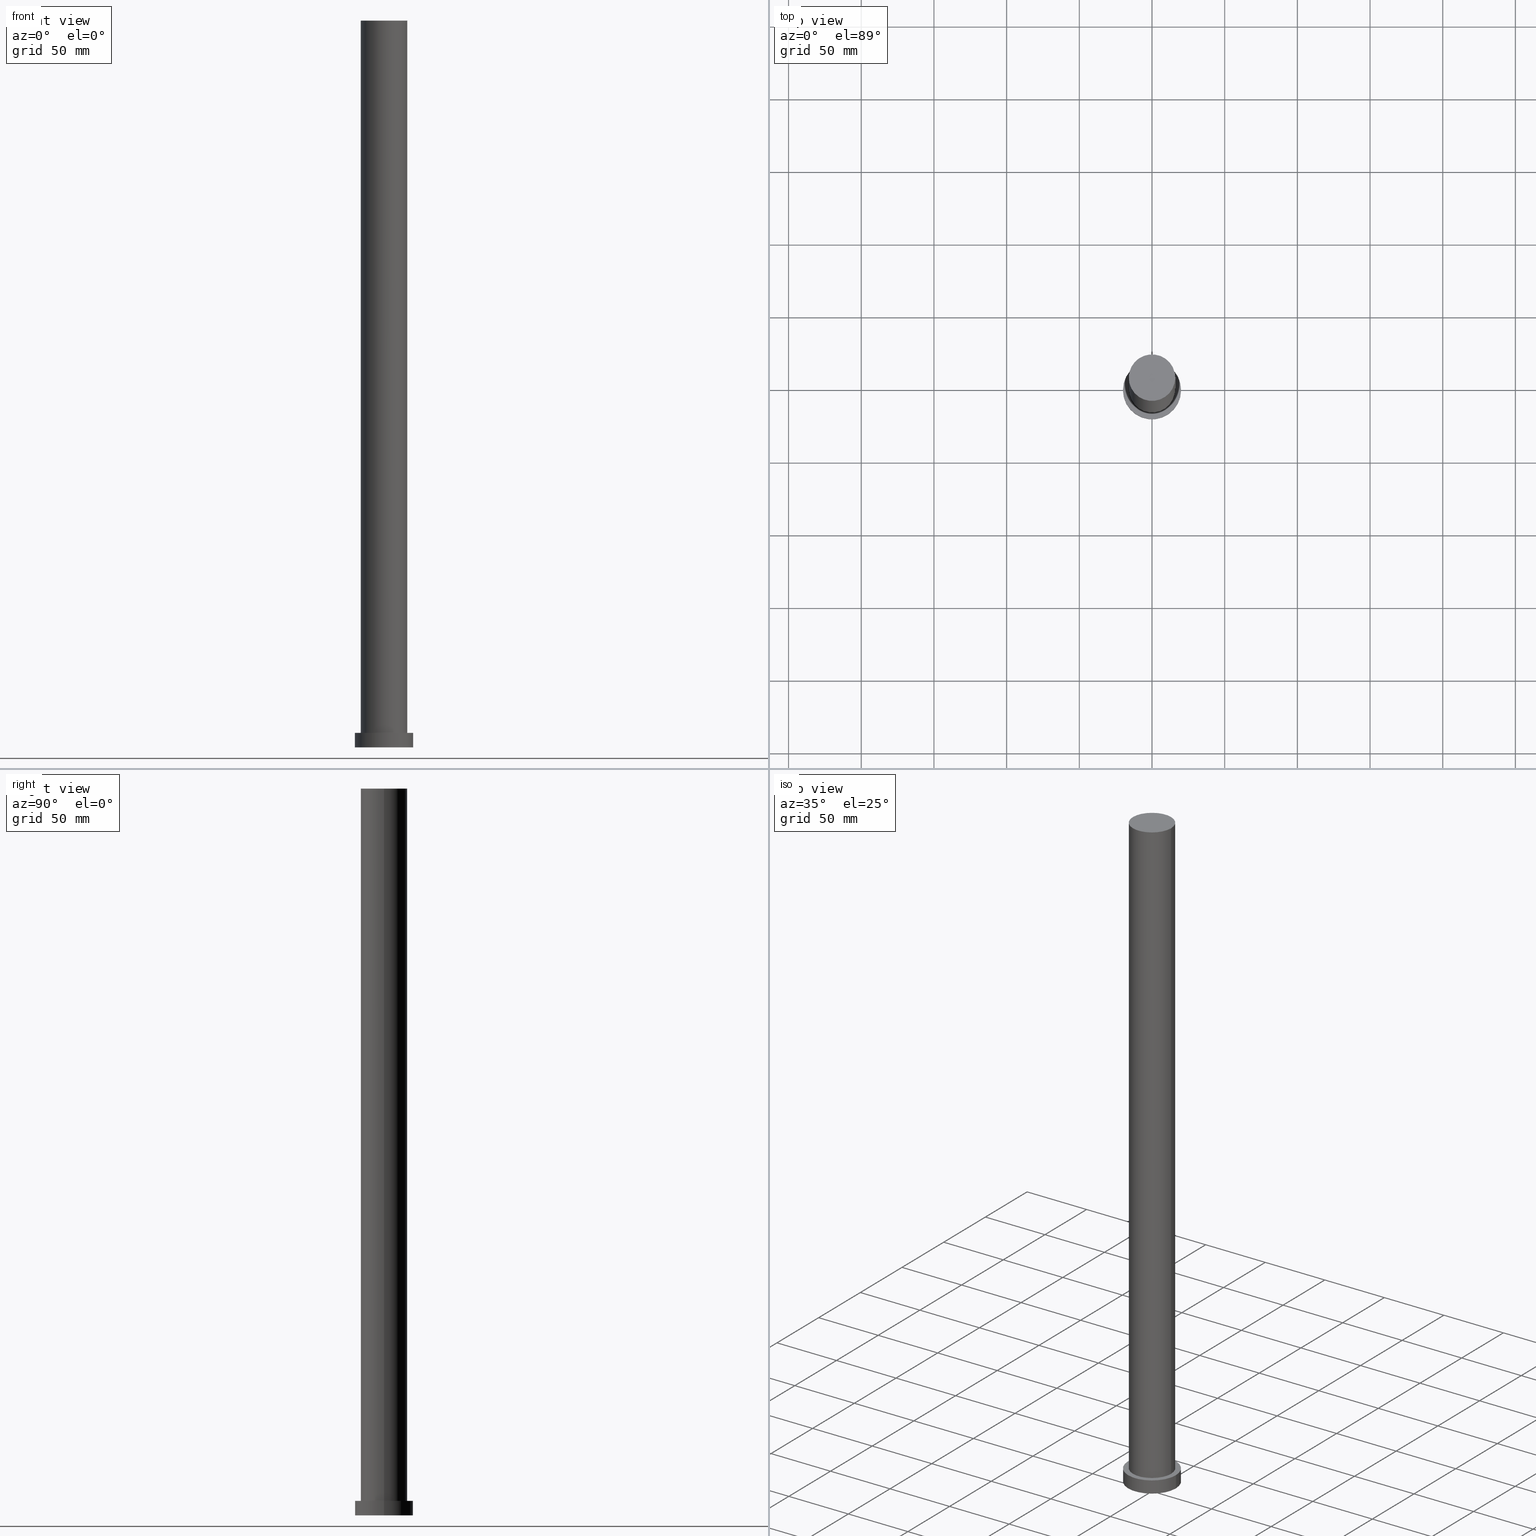
[diagram: canonical four-view strip — front | top / right | iso, engineering-drawing reading convention]
A machine part, canonical four-view strip (front | top / right | iso — engineering-drawing reading convention). The complete STEP part file that produces these views, byte-faithful:
ISO-10303-21;
HEADER;
FILE_DESCRIPTION (( 'STEP AP203' ),
    '1' );
FILE_NAME ('41db.STEP',
    '2023-02-12T10:25:48',
    ( '' ),
    ( '' ),
    'SwSTEP 2.0',
    'SolidWorks 2019',
    '' );
FILE_SCHEMA (( 'CONFIG_CONTROL_DESIGN' ));
ENDSEC;

DATA;
#1 = CYLINDRICAL_SURFACE ( 'NONE', #191, 16.00000000000000000 ) ;
#2 = DIRECTION ( 'NONE',  ( -0.000000000000000000, -0.000000000000000000, -1.000000000000000000 ) ) ;
#3 = CARTESIAN_POINT ( 'NONE',  ( 0.000000000000000000, 0.000000000000000000, 10.00000000000000000 ) ) ;
#4 = AXIS2_PLACEMENT_3D ( 'NONE', #36, #154, #33 ) ;
#5 = SECURITY_CLASSIFICATION ( '', '', #66 ) ;
#6 = PERSON_AND_ORGANIZATION ( #24, #159 ) ;
#7 = FACE_OUTER_BOUND ( 'NONE', #51, .T. ) ;
#8 = DIRECTION ( 'NONE',  ( 1.000000000000000000, 0.000000000000000000, 0.000000000000000000 ) ) ;
#9 = DIRECTION ( 'NONE',  ( 0.000000000000000000, 0.000000000000000000, 1.000000000000000000 ) ) ;
#10 = COORDINATED_UNIVERSAL_TIME_OFFSET ( 1, 0, .AHEAD. ) ;
#11 = APPROVAL ( #107, 'NEUR�EN�' ) ;
#12 = DATE_TIME_ROLE ( 'classification_date' ) ;
#13 = CALENDAR_DATE ( 2023, 12, 2 ) ;
#14 = CIRCLE ( 'NONE', #230, 16.00000000000000000 ) ;
#15 = EDGE_LOOP ( 'NONE', ( #132, #246, #179, #131 ) ) ;
#16 = CIRCLE ( 'NONE', #248, 16.00000000000000000 ) ;
#17 = VERTEX_POINT ( 'NONE', #186 ) ;
#18 = CC_DESIGN_DATE_AND_TIME_ASSIGNMENT ( #40, #120, ( #170 ) ) ;
#19 = DIRECTION ( 'NONE',  ( -0.000000000000000000, -0.000000000000000000, -1.000000000000000000 ) ) ;
#20 = DATE_AND_TIME ( #163, #77 ) ;
#21 = CARTESIAN_POINT ( 'NONE',  ( 16.00000000000000000, 1.959434878635765131E-15, 500.0000000000000000 ) ) ;
#22 = CC_DESIGN_APPROVAL ( #83, ( #5 ) ) ;
#23 = DIRECTION ( 'NONE',  ( 1.000000000000000000, 0.000000000000000000, -0.000000000000000000 ) ) ;
#24 = PERSON ( 'NEUR�EN�', 'NEUR�EN�', 'NEUR�EN�', ('NEUR�EN�'), ('NEUR�EN�'), ('NEUR�EN�') ) ;
#25 = CARTESIAN_POINT ( 'NONE',  ( -16.00000000000000000, 0.000000000000000000, 500.0000000000000000 ) ) ;
#26 = DIRECTION ( 'NONE',  ( -0.000000000000000000, -0.000000000000000000, -1.000000000000000000 ) ) ;
#27 = PRODUCT_DEFINITION_FORMATION_WITH_SPECIFIED_SOURCE ( 'LIBOVOLN�', '', #37, .NOT_KNOWN. ) ;
#28 = CARTESIAN_POINT ( 'NONE',  ( 0.000000000000000000, 0.000000000000000000, 0.000000000000000000 ) ) ;
#29 = FACE_OUTER_BOUND ( 'NONE', #153, .T. ) ;
#30 = APPROVAL_STATUS ( 'not_yet_approved' ) ;
#31 = EDGE_CURVE ( 'NONE', #47, #238, #150, .T. ) ;
#32 = EDGE_LOOP ( 'NONE', ( #234, #177 ) ) ;
#33 = DIRECTION ( 'NONE',  ( 1.000000000000000000, 0.000000000000000000, 0.000000000000000000 ) ) ;
#34 = CARTESIAN_POINT ( 'NONE',  ( 0.000000000000000000, 0.000000000000000000, 10.00000000000000000 ) ) ;
#35 = ORIENTED_EDGE ( 'NONE', *, *, #217, .T. ) ;
#36 = CARTESIAN_POINT ( 'NONE',  ( 0.000000000000000000, 0.000000000000000000, 0.000000000000000000 ) ) ;
#37 = PRODUCT ( '41db', '41db', '', ( #42 ) ) ;
#38 = DIRECTION ( 'NONE',  ( 1.000000000000000000, 0.000000000000000000, 0.000000000000000000 ) ) ;
#39 = ORIENTED_EDGE ( 'NONE', *, *, #155, .T. ) ;
#40 = DATE_AND_TIME ( #226, #71 ) ;
#41 = DIRECTION ( 'NONE',  ( 1.000000000000000000, 0.000000000000000000, 0.000000000000000000 ) ) ;
#42 = MECHANICAL_CONTEXT ( 'NONE', #247, 'mechanical' ) ;
#43 = CC_DESIGN_PERSON_AND_ORGANIZATION_ASSIGNMENT ( #172, #109, ( #27 ) ) ;
#44 = LOCAL_TIME ( 11, 25, 48.00000000000000000, #64 ) ;
#45 = AXIS2_PLACEMENT_3D ( 'NONE', #105, #187, #8 ) ;
#46 = PERSON_AND_ORGANIZATION ( #24, #159 ) ;
#47 = VERTEX_POINT ( 'NONE', #142 ) ;
#48 = CYLINDRICAL_SURFACE ( 'NONE', #149, 16.00000000000000000 ) ;
#49 = EDGE_CURVE ( 'NONE', #175, #156, #202, .T. ) ;
#50 = DIRECTION ( 'NONE',  ( 1.000000000000000000, 0.000000000000000000, 0.000000000000000000 ) ) ;
#51 = EDGE_LOOP ( 'NONE', ( #195, #93 ) ) ;
#52 = ORIENTED_EDGE ( 'NONE', *, *, #31, .F. ) ;
#53 = LOCAL_TIME ( 11, 25, 48.00000000000000000, #10 ) ;
#54 = FACE_OUTER_BOUND ( 'NONE', #229, .T. ) ;
#55 = VECTOR ( 'NONE', #184, 1000.000000000000000 ) ;
#56 = DIRECTION ( 'NONE',  ( 1.000000000000000000, 0.000000000000000000, -0.000000000000000000 ) ) ;
#57 = ADVANCED_FACE ( 'NONE', ( #29 ), #62, .T. ) ;
#58 = APPROVAL_DATE_TIME ( #87, #11 ) ;
#59 = DIRECTION ( 'NONE',  ( 1.000000000000000000, 0.000000000000000000, -0.000000000000000000 ) ) ;
#60 = APPLICATION_CONTEXT ( 'configuration controlled 3d designs of mechanical parts and assemblies' ) ;
#61 = CARTESIAN_POINT ( 'NONE',  ( 16.00000000000000000, 1.959434878635765131E-15, 10.00000000000000000 ) ) ;
#62 = CYLINDRICAL_SURFACE ( 'NONE', #209, 20.00000000000000000 ) ;
#63 = EDGE_CURVE ( 'NONE', #17, #156, #94, .T. ) ;
#64 = COORDINATED_UNIVERSAL_TIME_OFFSET ( 1, 0, .AHEAD. ) ;
#65 = APPROVAL ( #30, 'NEUR�EN�' ) ;
#66 = SECURITY_CLASSIFICATION_LEVEL ( 'unclassified' ) ;
#67 = AXIS2_PLACEMENT_3D ( 'NONE', #228, #118, #38 ) ;
#68 = VERTEX_POINT ( 'NONE', #61 ) ;
#69 = DIRECTION ( 'NONE',  ( -0.000000000000000000, -0.000000000000000000, -1.000000000000000000 ) ) ;
#70 = CARTESIAN_POINT ( 'NONE',  ( 0.000000000000000000, 0.000000000000000000, 500.0000000000000000 ) ) ;
#71 = LOCAL_TIME ( 11, 25, 48.00000000000000000, #165 ) ;
#72 = CARTESIAN_POINT ( 'NONE',  ( 0.000000000000000000, 0.000000000000000000, 500.0000000000000000 ) ) ;
#73 = FACE_BOUND ( 'NONE', #236, .T. ) ;
#74 = EDGE_LOOP ( 'NONE', ( #84, #35, #135, #114 ) ) ;
#75 = DIRECTION ( 'NONE',  ( 0.000000000000000000, 0.000000000000000000, 1.000000000000000000 ) ) ;
#76 = FACE_OUTER_BOUND ( 'NONE', #32, .T. ) ;
#77 = LOCAL_TIME ( 11, 25, 48.00000000000000000, #253 ) ;
#78 = CARTESIAN_POINT ( 'NONE',  ( 0.000000000000000000, 0.000000000000000000, 0.000000000000000000 ) ) ;
#79 = CIRCLE ( 'NONE', #171, 20.00000000000000000 ) ;
#80 = PLANE ( 'NONE',  #216 ) ;
#81 = PERSON_AND_ORGANIZATION ( #24, #159 ) ;
#82 = DIRECTION ( 'NONE',  ( -0.000000000000000000, -0.000000000000000000, -1.000000000000000000 ) ) ;
#83 = APPROVAL ( #126, 'NEUR�EN�' ) ;
#84 = ORIENTED_EDGE ( 'NONE', *, *, #213, .F. ) ;
#85 = APPROVAL_PERSON_ORGANIZATION ( #190, #11, #200 ) ;
#86 = CALENDAR_DATE ( 2023, 12, 2 ) ;
#87 = DATE_AND_TIME ( #86, #53 ) ;
#88 = PERSON_AND_ORGANIZATION ( #24, #159 ) ;
#89 = DATE_AND_TIME ( #13, #204 ) ;
#90 = AXIS2_PLACEMENT_3D ( 'NONE', #188, #9, #219 ) ;
#91 = APPROVAL_DATE_TIME ( #89, #65 ) ;
#92 = ADVANCED_FACE ( 'NONE', ( #76 ), #227, .T. ) ;
#93 = ORIENTED_EDGE ( 'NONE', *, *, #63, .F. ) ;
#94 = CIRCLE ( 'NONE', #103, 20.00000000000000000 ) ;
#95 = LINE ( 'NONE', #183, #240 ) ;
#96 = ORIENTED_EDGE ( 'NONE', *, *, #164, .T. ) ;
#97 = ORIENTED_EDGE ( 'NONE', *, *, #155, .F. ) ;
#98 =( LENGTH_UNIT ( ) NAMED_UNIT ( * ) SI_UNIT ( .MILLI., .METRE. ) );
#99 =( NAMED_UNIT ( * ) SI_UNIT ( $, .STERADIAN. ) SOLID_ANGLE_UNIT ( ) );
#100 = LINE ( 'NONE', #25, #145 ) ;
#101 = CARTESIAN_POINT ( 'NONE',  ( -20.00000000000000000, 0.000000000000000000, 10.00000000000000000 ) ) ;
#102 = CARTESIAN_POINT ( 'NONE',  ( 20.00000000000000000, 2.449293598294706513E-15, 10.00000000000000000 ) ) ;
#103 = AXIS2_PLACEMENT_3D ( 'NONE', #241, #119, #41 ) ;
#104 = CIRCLE ( 'NONE', #4, 20.00000000000000000 ) ;
#105 = CARTESIAN_POINT ( 'NONE',  ( 0.000000000000000000, 0.000000000000000000, 10.00000000000000000 ) ) ;
#106 = CARTESIAN_POINT ( 'NONE',  ( -20.00000000000000000, 0.000000000000000000, 0.000000000000000000 ) ) ;
#107 = APPROVAL_STATUS ( 'not_yet_approved' ) ;
#108 = CLOSED_SHELL ( 'NONE', ( #210, #57, #239, #201, #129, #254, #92 ) ) ;
#109 = PERSON_AND_ORGANIZATION_ROLE ( 'design_supplier' ) ;
#110 = EDGE_CURVE ( 'NONE', #127, #17, #225, .T. ) ;
#111 = COORDINATED_UNIVERSAL_TIME_OFFSET ( 1, 0, .AHEAD. ) ;
#112 = CC_DESIGN_PERSON_AND_ORGANIZATION_ASSIGNMENT ( #81, #144, ( #37 ) ) ;
#113 = PERSON_AND_ORGANIZATION ( #24, #159 ) ;
#114 = ORIENTED_EDGE ( 'NONE', *, *, #192, .F. ) ;
#115 = ORIENTED_EDGE ( 'NONE', *, *, #141, .F. ) ;
#116 = CC_DESIGN_PERSON_AND_ORGANIZATION_ASSIGNMENT ( #6, #138, ( #170 ) ) ;
#117 = ORIENTED_EDGE ( 'NONE', *, *, #192, .T. ) ;
#118 = DIRECTION ( 'NONE',  ( 0.000000000000000000, 0.000000000000000000, 1.000000000000000000 ) ) ;
#119 = DIRECTION ( 'NONE',  ( 0.000000000000000000, 0.000000000000000000, 1.000000000000000000 ) ) ;
#120 = DATE_TIME_ROLE ( 'creation_date' ) ;
#121 = DIRECTION ( 'NONE',  ( 0.000000000000000000, 0.000000000000000000, 1.000000000000000000 ) ) ;
#122 = DIRECTION ( 'NONE',  ( 0.000000000000000000, 0.000000000000000000, 1.000000000000000000 ) ) ;
#123 = DIRECTION ( 'NONE',  ( 1.000000000000000000, 0.000000000000000000, 0.000000000000000000 ) ) ;
#124 = VECTOR ( 'NONE', #26, 1000.000000000000000 ) ;
#125 = CC_DESIGN_APPROVAL ( #11, ( #170 ) ) ;
#126 = APPROVAL_STATUS ( 'not_yet_approved' ) ;
#127 = VERTEX_POINT ( 'NONE', #166 ) ;
#128 = AXIS2_PLACEMENT_3D ( 'NONE', #178, #75, #23 ) ;
#129 = ADVANCED_FACE ( 'NONE', ( #7 ), #80, .F. ) ;
#130 = EDGE_LOOP ( 'NONE', ( #96, #39 ) ) ;
#131 = ORIENTED_EDGE ( 'NONE', *, *, #168, .T. ) ;
#132 = ORIENTED_EDGE ( 'NONE', *, *, #110, .F. ) ;
#133 = EDGE_CURVE ( 'NONE', #68, #167, #16, .T. ) ;
#134 = FACE_OUTER_BOUND ( 'NONE', #130, .T. ) ;
#135 = ORIENTED_EDGE ( 'NONE', *, *, #133, .T. ) ;
#136 =( NAMED_UNIT ( * ) PLANE_ANGLE_UNIT ( ) SI_UNIT ( $, .RADIAN. ) );
#137 = DIRECTION ( 'NONE',  ( -1.000000000000000000, 0.000000000000000000, 0.000000000000000000 ) ) ;
#138 = PERSON_AND_ORGANIZATION_ROLE ( 'creator' ) ;
#139 = CARTESIAN_POINT ( 'NONE',  ( 0.000000000000000000, 0.000000000000000000, 10.00000000000000000 ) ) ;
#140 = DIRECTION ( 'NONE',  ( 0.000000000000000000, 0.000000000000000000, 1.000000000000000000 ) ) ;
#141 = EDGE_CURVE ( 'NONE', #167, #68, #161, .T. ) ;
#142 = CARTESIAN_POINT ( 'NONE',  ( -16.00000000000000000, 0.000000000000000000, 500.0000000000000000 ) ) ;
#143 = ORIENTED_EDGE ( 'NONE', *, *, #63, .T. ) ;
#144 = PERSON_AND_ORGANIZATION_ROLE ( 'design_owner' ) ;
#145 = VECTOR ( 'NONE', #2, 1000.000000000000000 ) ;
#146 = CC_DESIGN_SECURITY_CLASSIFICATION ( #5, ( #27 ) ) ;
#147 = PERSON_AND_ORGANIZATION ( #24, #159 ) ;
#148 = PERSON_AND_ORGANIZATION_ROLE ( 'creator' ) ;
#149 = AXIS2_PLACEMENT_3D ( 'NONE', #70, #69, #222 ) ;
#150 = CIRCLE ( 'NONE', #67, 16.00000000000000000 ) ;
#151 = ORIENTED_EDGE ( 'NONE', *, *, #217, .F. ) ;
#152 =( GEOMETRIC_REPRESENTATION_CONTEXT ( 3 ) GLOBAL_UNCERTAINTY_ASSIGNED_CONTEXT ( ( #193 ) ) GLOBAL_UNIT_ASSIGNED_CONTEXT ( ( #98, #136, #99 ) ) REPRESENTATION_CONTEXT ( 'NONE', 'WORKASPACE' ) );
#153 = EDGE_LOOP ( 'NONE', ( #97, #218, #143, #251 ) ) ;
#154 = DIRECTION ( 'NONE',  ( 0.000000000000000000, 0.000000000000000000, 1.000000000000000000 ) ) ;
#155 = EDGE_CURVE ( 'NONE', #127, #175, #79, .T. ) ;
#156 = VERTEX_POINT ( 'NONE', #106 ) ;
#157 = FACE_OUTER_BOUND ( 'NONE', #74, .T. ) ;
#158 = DIRECTION ( 'NONE',  ( -1.000000000000000000, 0.000000000000000000, 0.000000000000000000 ) ) ;
#159 = ORGANIZATION ( 'NEUR�EN�', 'NEUR�EN�', '' ) ;
#160 = DIRECTION ( 'NONE',  ( 0.000000000000000000, 0.000000000000000000, 1.000000000000000000 ) ) ;
#161 = CIRCLE ( 'NONE', #45, 16.00000000000000000 ) ;
#162 = DIRECTION ( 'NONE',  ( 0.000000000000000000, 0.000000000000000000, 1.000000000000000000 ) ) ;
#163 = CALENDAR_DATE ( 2023, 12, 2 ) ;
#164 = EDGE_CURVE ( 'NONE', #175, #127, #206, .T. ) ;
#165 = COORDINATED_UNIVERSAL_TIME_OFFSET ( 1, 0, .AHEAD. ) ;
#166 = CARTESIAN_POINT ( 'NONE',  ( 20.00000000000000000, 2.449293598294706513E-15, 10.00000000000000000 ) ) ;
#167 = VERTEX_POINT ( 'NONE', #198 ) ;
#168 = EDGE_CURVE ( 'NONE', #156, #17, #104, .T. ) ;
#169 = APPLICATION_PROTOCOL_DEFINITION ( 'international standard', 'config_control_design', 1994, #60 ) ;
#170 = PRODUCT_DEFINITION ( 'NEZN�M�', '', #27, #212 ) ;
#171 = AXIS2_PLACEMENT_3D ( 'NONE', #245, #122, #208 ) ;
#172 = PERSON_AND_ORGANIZATION ( #24, #159 ) ;
#173 = APPROVAL_ROLE ( '' ) ;
#174 = CALENDAR_DATE ( 2023, 12, 2 ) ;
#175 = VERTEX_POINT ( 'NONE', #199 ) ;
#176 = CARTESIAN_POINT ( 'NONE',  ( 0.000000000000000000, 0.000000000000000000, 500.0000000000000000 ) ) ;
#177 = ORIENTED_EDGE ( 'NONE', *, *, #213, .T. ) ;
#178 = CARTESIAN_POINT ( 'NONE',  ( 0.000000000000000000, 0.000000000000000000, 10.00000000000000000 ) ) ;
#179 = ORIENTED_EDGE ( 'NONE', *, *, #49, .T. ) ;
#180 = APPROVAL_DATE_TIME ( #20, #83 ) ;
#181 = APPLICATION_PROTOCOL_DEFINITION ( 'international standard', 'config_control_design', 1994, #247 ) ;
#182 = APPROVAL_PERSON_ORGANIZATION ( #88, #83, #231 ) ;
#183 = CARTESIAN_POINT ( 'NONE',  ( 16.00000000000000000, 1.959434878635765131E-15, 500.0000000000000000 ) ) ;
#184 = DIRECTION ( 'NONE',  ( -0.000000000000000000, -0.000000000000000000, -1.000000000000000000 ) ) ;
#185 = AXIS2_PLACEMENT_3D ( 'NONE', #78, #140, #123 ) ;
#186 = CARTESIAN_POINT ( 'NONE',  ( 20.00000000000000000, 2.449293598294706513E-15, 0.000000000000000000 ) ) ;
#187 = DIRECTION ( 'NONE',  ( 0.000000000000000000, 0.000000000000000000, 1.000000000000000000 ) ) ;
#188 = CARTESIAN_POINT ( 'NONE',  ( 0.000000000000000000, 0.000000000000000000, 10.00000000000000000 ) ) ;
#189 = ADVANCED_BREP_SHAPE_REPRESENTATION ( '41db', ( #207, #185 ), #152 ) ;
#190 = PERSON_AND_ORGANIZATION ( #24, #159 ) ;
#191 = AXIS2_PLACEMENT_3D ( 'NONE', #72, #197, #158 ) ;
#192 = EDGE_CURVE ( 'NONE', #47, #167, #100, .T. ) ;
#193 = UNCERTAINTY_MEASURE_WITH_UNIT (LENGTH_MEASURE( 1.000000000000000082E-05 ), #98, 'distance_accuracy_value', 'NONE');
#194 = PERSON_AND_ORGANIZATION_ROLE ( 'classification_officer' ) ;
#195 = ORIENTED_EDGE ( 'NONE', *, *, #168, .F. ) ;
#196 = PRODUCT_RELATED_PRODUCT_CATEGORY ( 'detail', '', ( #37 ) ) ;
#197 = DIRECTION ( 'NONE',  ( -0.000000000000000000, -0.000000000000000000, -1.000000000000000000 ) ) ;
#198 = CARTESIAN_POINT ( 'NONE',  ( -16.00000000000000000, 0.000000000000000000, 10.00000000000000000 ) ) ;
#199 = CARTESIAN_POINT ( 'NONE',  ( -20.00000000000000000, 0.000000000000000000, 10.00000000000000000 ) ) ;
#200 = APPROVAL_ROLE ( '' ) ;
#201 = ADVANCED_FACE ( 'NONE', ( #73, #134 ), #215, .T. ) ;
#202 = LINE ( 'NONE', #101, #55 ) ;
#203 = SHAPE_DEFINITION_REPRESENTATION ( #214, #189 ) ;
#204 = LOCAL_TIME ( 11, 25, 48.00000000000000000, #111 ) ;
#205 = DIRECTION ( 'NONE',  ( 1.000000000000000000, 0.000000000000000000, 0.000000000000000000 ) ) ;
#206 = CIRCLE ( 'NONE', #90, 20.00000000000000000 ) ;
#207 = MANIFOLD_SOLID_BREP ( 'P�idat vysunut�m3', #108 ) ;
#208 = DIRECTION ( 'NONE',  ( 1.000000000000000000, 0.000000000000000000, 0.000000000000000000 ) ) ;
#209 = AXIS2_PLACEMENT_3D ( 'NONE', #3, #82, #137 ) ;
#210 = ADVANCED_FACE ( 'NONE', ( #157 ), #1, .T. ) ;
#211 = CC_DESIGN_APPROVAL ( #65, ( #27 ) ) ;
#212 = DESIGN_CONTEXT ( 'detailed design', #60, 'design' ) ;
#213 = EDGE_CURVE ( 'NONE', #238, #47, #14, .T. ) ;
#214 = PRODUCT_DEFINITION_SHAPE ( 'NONE', 'NONE',  #170 ) ;
#215 = PLANE ( 'NONE',  #128 ) ;
#216 = AXIS2_PLACEMENT_3D ( 'NONE', #28, #162, #59 ) ;
#217 = EDGE_CURVE ( 'NONE', #238, #68, #95, .T. ) ;
#218 = ORIENTED_EDGE ( 'NONE', *, *, #110, .T. ) ;
#219 = DIRECTION ( 'NONE',  ( 1.000000000000000000, 0.000000000000000000, 0.000000000000000000 ) ) ;
#220 = FACE_OUTER_BOUND ( 'NONE', #15, .T. ) ;
#221 = APPROVAL_PERSON_ORGANIZATION ( #147, #65, #173 ) ;
#222 = DIRECTION ( 'NONE',  ( -1.000000000000000000, 0.000000000000000000, 0.000000000000000000 ) ) ;
#223 = ORIENTED_EDGE ( 'NONE', *, *, #133, .F. ) ;
#224 = CC_DESIGN_DATE_AND_TIME_ASSIGNMENT ( #250, #12, ( #5 ) ) ;
#225 = LINE ( 'NONE', #102, #124 ) ;
#226 = CALENDAR_DATE ( 2023, 12, 2 ) ;
#227 = PLANE ( 'NONE',  #242 ) ;
#228 = CARTESIAN_POINT ( 'NONE',  ( 0.000000000000000000, 0.000000000000000000, 500.0000000000000000 ) ) ;
#229 = EDGE_LOOP ( 'NONE', ( #151, #52, #117, #255 ) ) ;
#230 = AXIS2_PLACEMENT_3D ( 'NONE', #176, #235, #50 ) ;
#231 = APPROVAL_ROLE ( '' ) ;
#232 = CC_DESIGN_PERSON_AND_ORGANIZATION_ASSIGNMENT ( #113, #148, ( #27 ) ) ;
#233 = DIRECTION ( 'NONE',  ( -1.000000000000000000, 0.000000000000000000, 0.000000000000000000 ) ) ;
#234 = ORIENTED_EDGE ( 'NONE', *, *, #31, .T. ) ;
#235 = DIRECTION ( 'NONE',  ( 0.000000000000000000, 0.000000000000000000, 1.000000000000000000 ) ) ;
#236 = EDGE_LOOP ( 'NONE', ( #115, #223 ) ) ;
#237 = CYLINDRICAL_SURFACE ( 'NONE', #249, 20.00000000000000000 ) ;
#238 = VERTEX_POINT ( 'NONE', #21 ) ;
#239 = ADVANCED_FACE ( 'NONE', ( #220 ), #237, .T. ) ;
#240 = VECTOR ( 'NONE', #19, 1000.000000000000000 ) ;
#241 = CARTESIAN_POINT ( 'NONE',  ( 0.000000000000000000, 0.000000000000000000, 0.000000000000000000 ) ) ;
#242 = AXIS2_PLACEMENT_3D ( 'NONE', #243, #160, #56 ) ;
#243 = CARTESIAN_POINT ( 'NONE',  ( 0.000000000000000000, 0.000000000000000000, 500.0000000000000000 ) ) ;
#244 = CC_DESIGN_PERSON_AND_ORGANIZATION_ASSIGNMENT ( #46, #194, ( #5 ) ) ;
#245 = CARTESIAN_POINT ( 'NONE',  ( 0.000000000000000000, 0.000000000000000000, 10.00000000000000000 ) ) ;
#246 = ORIENTED_EDGE ( 'NONE', *, *, #164, .F. ) ;
#247 = APPLICATION_CONTEXT ( 'configuration controlled 3d designs of mechanical parts and assemblies' ) ;
#248 = AXIS2_PLACEMENT_3D ( 'NONE', #139, #121, #205 ) ;
#249 = AXIS2_PLACEMENT_3D ( 'NONE', #34, #252, #233 ) ;
#250 = DATE_AND_TIME ( #174, #44 ) ;
#251 = ORIENTED_EDGE ( 'NONE', *, *, #49, .F. ) ;
#252 = DIRECTION ( 'NONE',  ( -0.000000000000000000, -0.000000000000000000, -1.000000000000000000 ) ) ;
#253 = COORDINATED_UNIVERSAL_TIME_OFFSET ( 1, 0, .AHEAD. ) ;
#254 = ADVANCED_FACE ( 'NONE', ( #54 ), #48, .T. ) ;
#255 = ORIENTED_EDGE ( 'NONE', *, *, #141, .T. ) ;
ENDSEC;
END-ISO-10303-21;
